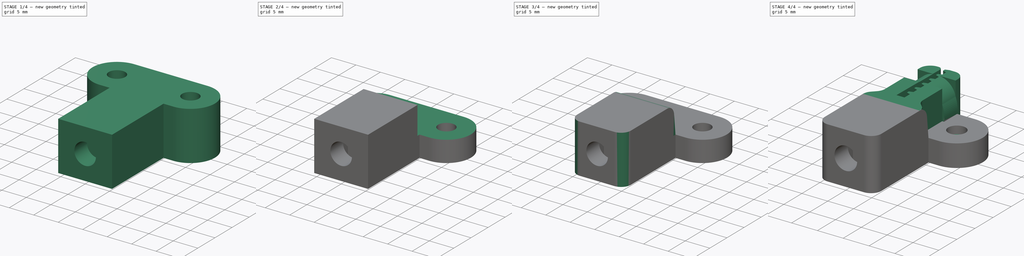
[diagram: build sequence overview — one tinted view per stage of 4, left to right]
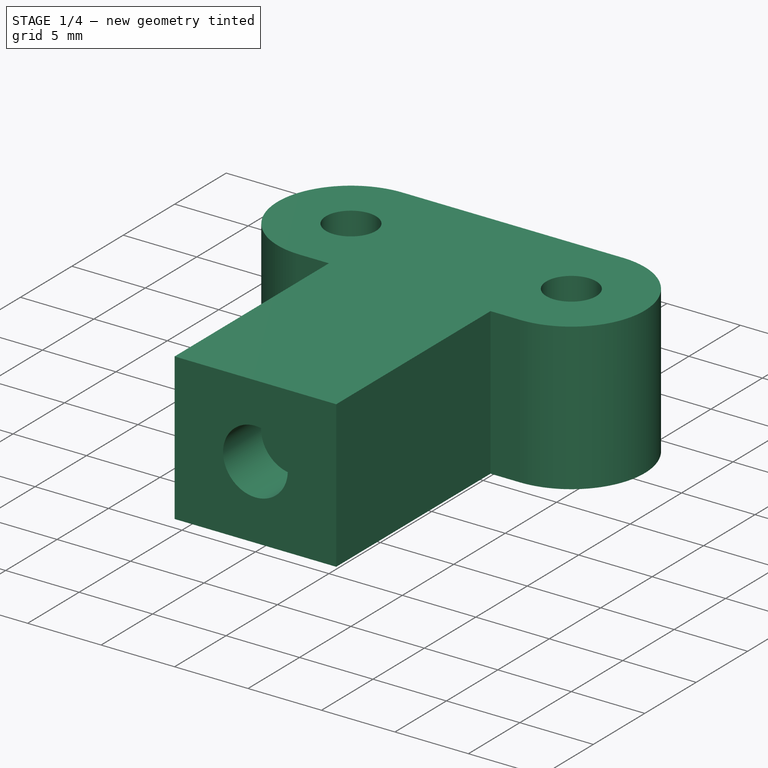
[diagram: stage 1 of 4 — iso view after this stage's code; geometry added in this stage tinted green]
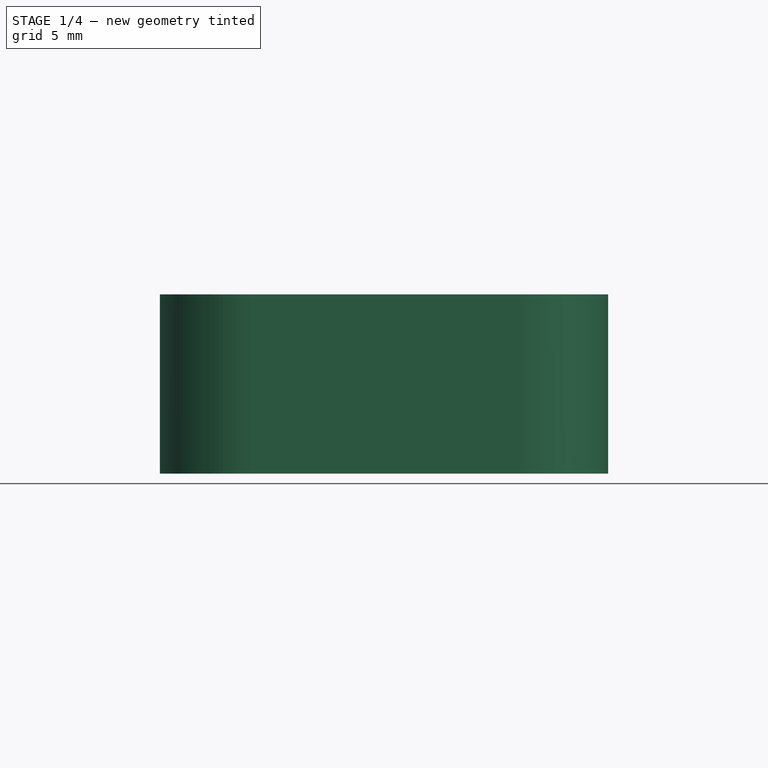
[diagram: stage 1 of 4 — front view after this stage's code; geometry added in this stage tinted green]
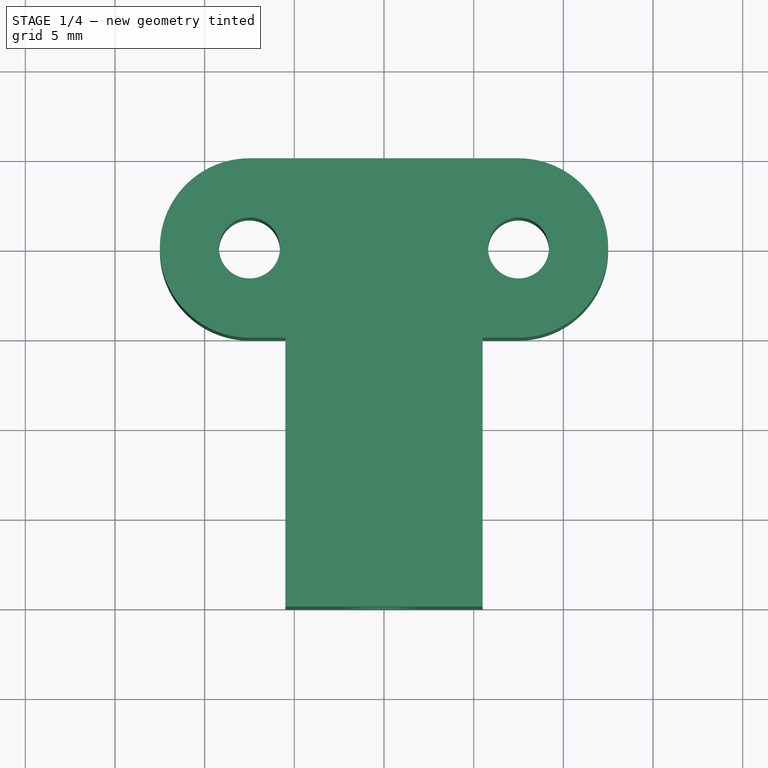
[diagram: stage 1 of 4 — top view after this stage's code; geometry added in this stage tinted green]
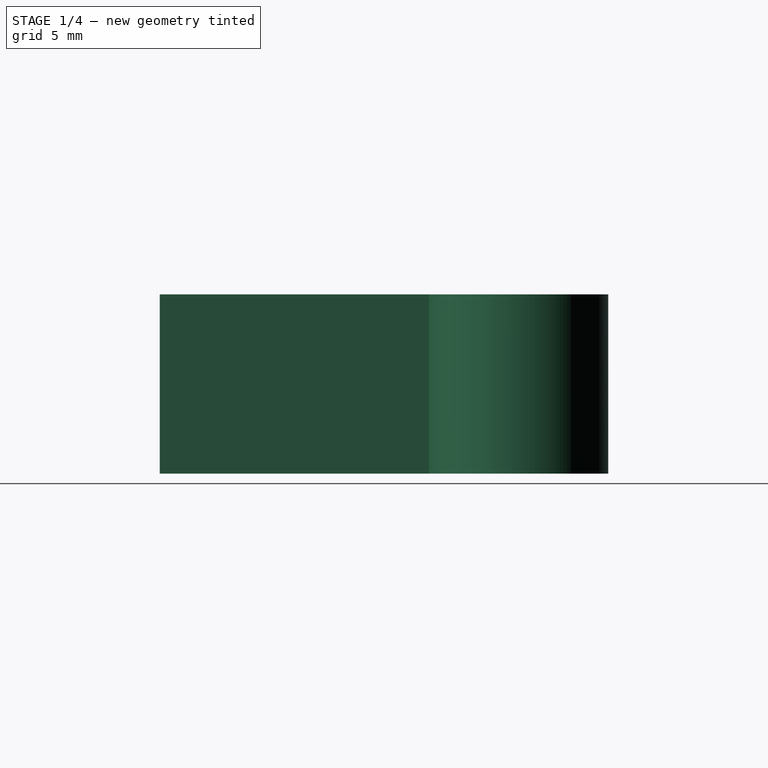
[diagram: stage 1 of 4 — right view after this stage's code; geometry added in this stage tinted green]
FCSTD DOCUMENT  (FreeCAD 0.15R4671 (Git))
Label: Belt Fixture - Bot
License: All rights reserved
LicenseURL: http://de.wikipedia.org/wiki/Alle_Rechte_vorbehalten
objects: Sketcher::SketchObject×7, PartDesign::Pad×4, PartDesign::Pocket×3, PartDesign::Fillet×2, Part::FeaturePython×1, Part::Cut×1, PartDesign::Chamfer×1
note: 26 computed .brp shape members not serialized (recipe doc carries the construction recipe); baked Part::Feature solids carry a one-line shape summary decoded from their .brp

FEATURE [Sketcher::SketchObject] Sketch
  sketch-geometry (11):
    g0: ArcOfCircle CenterX=-7.5 CenterY=0 CenterZ=0 NormalX=0 NormalY=0 NormalZ=1 Radius=5 StartAngle=1.5708 EndAngle=4.71239
    g1: ArcOfCircle CenterX=7.5 CenterY=0 CenterZ=0 NormalX=0 NormalY=0 NormalZ=1 Radius=5 StartAngle=4.71239 EndAngle=7.85398
    g2: LineSegment [constr] StartX=-7.5 StartY=-5 StartZ=0 EndX=7.5 EndY=-5 EndZ=0
    g3: LineSegment StartX=-7.5 StartY=5 StartZ=0 EndX=7.5 EndY=5 EndZ=0
    g4: Circle CenterX=-7.5 CenterY=0 CenterZ=0 NormalX=0 NormalY=0 NormalZ=1 Radius=1.7
    g5: Circle CenterX=7.5 CenterY=0 CenterZ=0 NormalX=0 NormalY=0 NormalZ=1 Radius=1.7
    g6: LineSegment StartX=-7.5 StartY=-5 StartZ=0 EndX=-5.5 EndY=-5 EndZ=0
    g7: LineSegment StartX=-5.5 StartY=-5 StartZ=0 EndX=-5.5 EndY=-20 EndZ=0
    g8: LineSegment StartX=-5.5 StartY=-20 StartZ=0 EndX=5.5 EndY=-20 EndZ=0
    g9: LineSegment StartX=5.5 StartY=-20 StartZ=0 EndX=5.5 EndY=-5 EndZ=0
    g10: LineSegment StartX=5.5 StartY=-5 StartZ=0 EndX=7.5 EndY=-5 EndZ=0
  constraints (31):
    c: Tangent(g0,g3) = 1.5708
    c: Tangent(g3,g1) = 1.5708
    c: Horizontal(g2)
    c: Equal(g0,g1)
    c: Symmetric(g0,g1,g-2)
    c: DistanceX(g0,g1) = 15
    c: Coincident(g4,g0)
    c: DistanceY(g1,g1) = -10
    c: Coincident(g5,g1)
    c: Radius(g5) = 1.7
    c: Equal(g5,g4)
    c: Coincident(g1,g2)
    c: Coincident(g0,g2)
    c: PointOnObject(g0,g-1)
    c: Equal(g2,g3)
    c: Symmetric(g0,g1,g-2)
    c: Horizontal(g6)
    c: Coincident(g6,g7)
    c: Vertical(g7)
    c: Coincident(g7,g8)
    c: Horizontal(g8)
    c: Coincident(g8,g9)
    c: Vertical(g9)
    c: Coincident(g9,g10)
    c: Horizontal(g10)
    c: Symmetric(g7,g8,g-2)
    c: PointOnObject(g6,g10)
    c: Coincident(g1,g10)
    c: Coincident(g6,g0)
    c: DistanceX(g8) = 11
    c: DistanceY(g9) = 15
FEATURE [PartDesign::Pad] Pad
  Length = 10
  Length2 = 100
  Sketch = -> Sketch
  Type = 0
FEATURE [Sketcher::SketchObject] Sketch001
  Placement = pos=(0,-13,0) rot=(-1,0,0;4.71239rad)
  sketch-geometry (10):
    g0: LineSegment [constr] StartX=0 StartY=0.929681 StartZ=0 EndX=3.525 EndY=2.96484 EndZ=0
    g1: LineSegment StartX=3.525 StartY=2.96484 StartZ=0 EndX=3.525 EndY=7.03516 EndZ=0
    g2: LineSegment StartX=3.525 StartY=7.03516 StartZ=0 EndX=0 EndY=9.07032 EndZ=0
    g3: LineSegment StartX=0 StartY=9.07032 StartZ=0 EndX=-3.525 EndY=7.03516 EndZ=0
    g4: LineSegment StartX=-3.525 StartY=7.03516 StartZ=0 EndX=-3.525 EndY=2.96484 EndZ=0
    g5: LineSegment [constr] StartX=-3.525 StartY=2.96484 StartZ=0 EndX=0 EndY=0.929681 EndZ=0
    g6: Circle [constr] CenterX=0 CenterY=5 CenterZ=0 NormalX=0 NormalY=0 NormalZ=1 Radius=4.07032
    g7: LineSegment StartX=-3.525 StartY=2.96484 StartZ=0 EndX=-3.525 EndY=0 EndZ=0
    g8: LineSegment StartX=-3.525 StartY=0 StartZ=0 EndX=3.525 EndY=0 EndZ=0
    g9: LineSegment StartX=3.525 StartY=0 StartZ=0 EndX=3.525 EndY=2.96484 EndZ=0
  constraints (25):
    c: Coincident(g0,g1)
    c: Coincident(g1,g2)
    c: Coincident(g2,g3)
    c: Coincident(g3,g4)
    c: Coincident(g4,g5)
    c: Coincident(g5,g0)
    c: Equal(g0, g1-g5) x5
    c: PointOnObject(g0,g6)
    c: PointOnObject(g1,g6)
    c: PointOnObject(g2,g6)
    c: PointOnObject(g3,g6)
    c: PointOnObject(g4,g6)
    c: PointOnObject(g5,g6)
    c: Vertical(g4)
    c: DistanceY(g-1,g6) = 5
    c: PointOnObject(g6,g-2)
    c: Distance(g0,g4) = 7.05
    c: Vertical(g7)
    c: Coincident(g7,g8)
    c: Horizontal(g8)
    c: Coincident(g8,g9)
    c: Vertical(g9)
    c: Coincident(g0,g9)
    c: Coincident(g4,g7)
    c: PointOnObject(g8,g-1)
FEATURE [Sketcher::SketchObject] Sketch002
  Placement = pos=(0,-20,0) rot=(1,0,0;1.5708rad)
  Support = -> Pad [Face4]
  sketch-geometry (1):
    g0: Circle CenterX=0 CenterY=5 CenterZ=0 NormalX=0 NormalY=0 NormalZ=1 Radius=2.2
  constraints (3):
    c: PointOnObject(g0,g-2)
    c: Radius(g0) = 2.2
    c: DistanceY(g-1,g0) = 5
FEATURE [PartDesign::Pocket] Pocket
  Length = 14
  Sketch = -> Sketch002
  Type = 0
FEATURE [PartDesign::Pad] Pad001
  Length = 3.3
  Length2 = 100
  Placement = pos=(0,-13,0) rot=(-1,0,0;4.71239rad)
  Sketch = -> Sketch001
  Type = 0
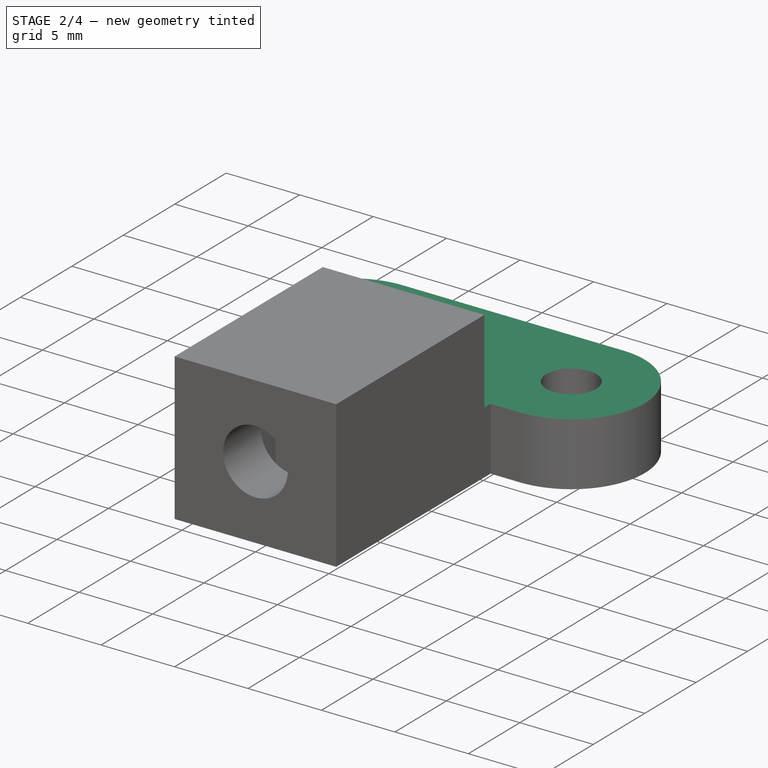
[diagram: stage 2 of 4 — iso view after this stage's code; geometry added in this stage tinted green]
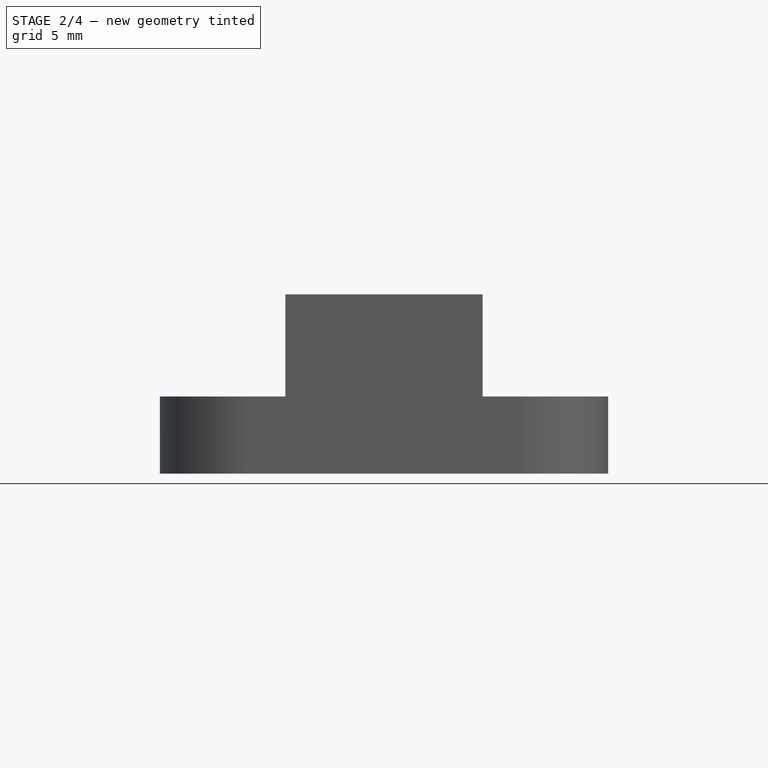
[diagram: stage 2 of 4 — front view after this stage's code; geometry added in this stage tinted green]
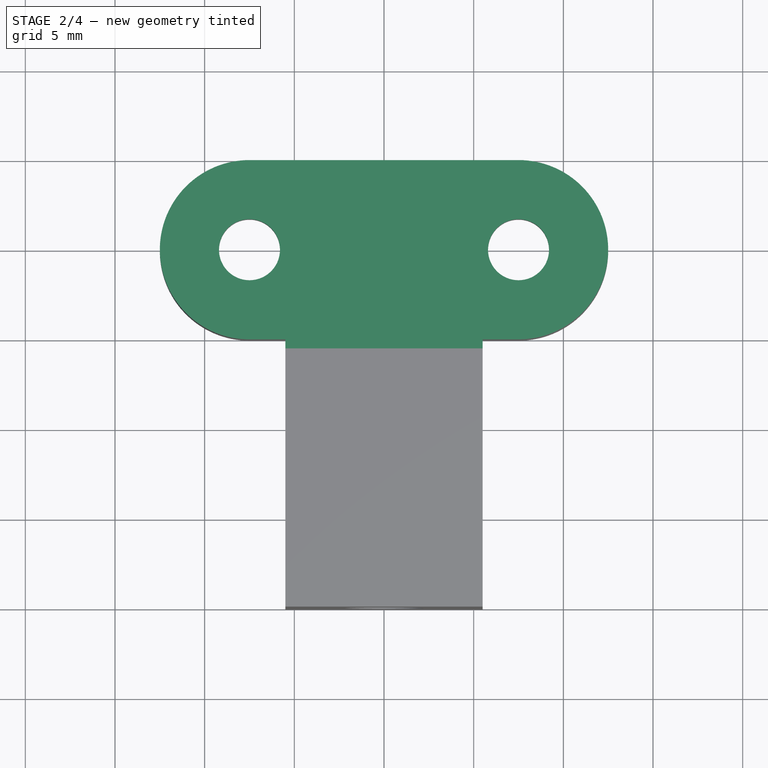
[diagram: stage 2 of 4 — top view after this stage's code; geometry added in this stage tinted green]
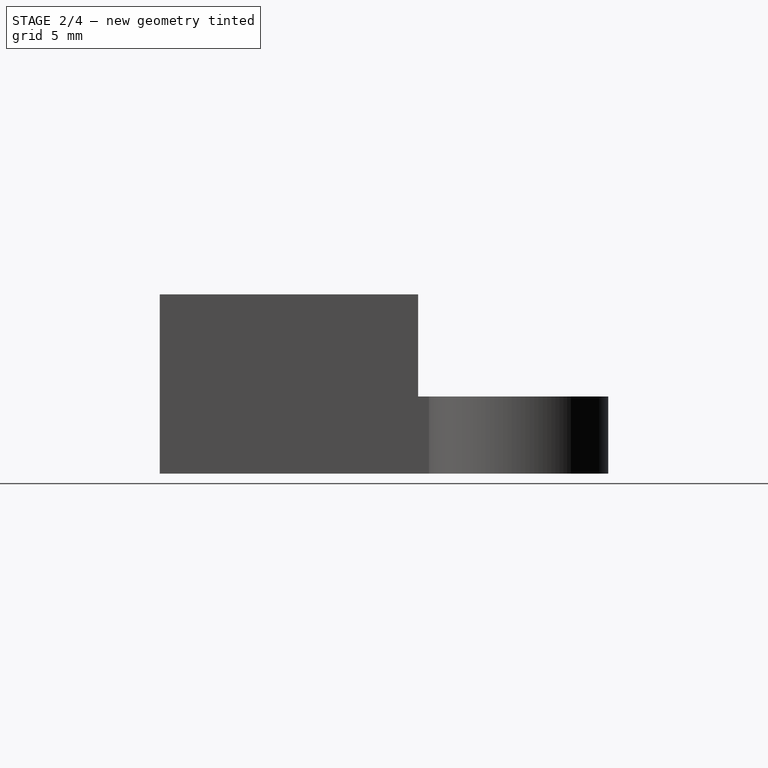
[diagram: stage 2 of 4 — right view after this stage's code; geometry added in this stage tinted green]
FEATURE [Part::Cut] Cut
  Base = -> Pocket
  Tool = -> Pad001
FEATURE [Sketcher::SketchObject] Sketch003
  ExternalGeometry = -> [Cut]
  Placement = pos=(0,0,0) rot=(1,0,0;3.14159rad)
  Support = -> Cut [Face4]
  sketch-geometry (14):
    g0: LineSegment StartX=-4.29571 StartY=0 StartZ=0 EndX=-5.89785 EndY=2.775 EndZ=0
    g1: LineSegment StartX=-5.89785 StartY=2.775 StartZ=0 EndX=-9.10215 EndY=2.775 EndZ=0
    g2: LineSegment StartX=-9.10215 StartY=2.775 StartZ=0 EndX=-10.7043 EndY=0 EndZ=0
    g3: LineSegment StartX=-10.7043 StartY=0 StartZ=0 EndX=-9.10215 EndY=-2.775 EndZ=0
    g4: LineSegment StartX=-9.10215 StartY=-2.775 StartZ=0 EndX=-5.89785 EndY=-2.775 EndZ=0
    g5: LineSegment StartX=-5.89785 StartY=-2.775 StartZ=0 EndX=-4.29571 EndY=0 EndZ=0
    g6: Circle [constr] CenterX=-7.5 CenterY=0 CenterZ=0 NormalX=0 NormalY=0 NormalZ=1 Radius=3.20429
    g7: LineSegment StartX=10.7043 StartY=0 StartZ=0 EndX=9.10215 EndY=2.775 EndZ=0
    g8: LineSegment StartX=9.10215 StartY=2.775 StartZ=0 EndX=5.89785 EndY=2.775 EndZ=0
    g9: LineSegment StartX=5.89785 StartY=2.775 StartZ=0 EndX=4.29571 EndY=0 EndZ=0
    g10: LineSegment StartX=4.29571 StartY=0 StartZ=0 EndX=5.89785 EndY=-2.775 EndZ=0
    g11: LineSegment StartX=5.89785 StartY=-2.775 StartZ=0 EndX=9.10215 EndY=-2.775 EndZ=0
    g12: LineSegment StartX=9.10215 StartY=-2.775 StartZ=0 EndX=10.7043 EndY=0 EndZ=0
    g13: Circle [constr] CenterX=7.5 CenterY=0 CenterZ=0 NormalX=0 NormalY=0 NormalZ=1 Radius=3.20429
  constraints (32):
    c: Coincident(g0,g1)
    c: Coincident(g1,g2)
    c: Coincident(g2,g3)
    c: Coincident(g3,g4)
    c: Coincident(g4,g5)
    c: Coincident(g5,g0)
    c: Equal(g0, g1-g5) x5
    c: PointOnObject(g0,g6)
    c: PointOnObject(g1,g6)
    c: PointOnObject(g2,g6)
    c: PointOnObject(g3,g6)
    c: PointOnObject(g4,g6)
    c: PointOnObject(g5,g6)
    c: Horizontal(g4)
    c: Coincident(g7,g8)
    c: Coincident(g8,g9)
    c: Coincident(g9,g10)
    c: Coincident(g10,g11)
    c: Coincident(g11,g12)
    c: Coincident(g12,g7)
    c: Equal(g7, g8-g12) x5
    c: PointOnObject(g7,g13)
    c: PointOnObject(g8,g13)
    c: PointOnObject(g9,g13)
    c: PointOnObject(g10,g13)
    c: PointOnObject(g11,g13)
    c: PointOnObject(g12,g13)
    c: Horizontal(g11)
    c: Symmetric(g6,g13,g-2)
    c: Equal(g6,g13)
    c: Distance(g0,g4) = 5.55
    c: Coincident(g-3,g6)
FEATURE [PartDesign::Pocket] Pocket001
  Length = 2.5
  Sketch = -> Sketch003
  Type = 0
FEATURE [Sketcher::SketchObject] Sketch004
  ExternalGeometry = -> [Pocket001]
  Placement = pos=(0,0,10) rot=(0,0,1;0rad)
  Support = -> Pocket001 [Face5]
  sketch-geometry (9):
    g0: ArcOfCircle CenterX=-7.5 CenterY=0 CenterZ=0 NormalX=0 NormalY=0 NormalZ=1 Radius=5 StartAngle=1.5708 EndAngle=4.71239
    g1: ArcOfCircle CenterX=7.5 CenterY=0 CenterZ=0 NormalX=0 NormalY=0 NormalZ=1 Radius=5 StartAngle=4.71239 EndAngle=7.85398
    g2: LineSegment [constr] StartX=-7.5 StartY=-5 StartZ=0 EndX=7.5 EndY=-5 EndZ=0
    g3: LineSegment StartX=-7.5 StartY=5 StartZ=0 EndX=7.5 EndY=5 EndZ=0
    g4: LineSegment StartX=-7.5 StartY=-5 StartZ=0 EndX=-5.5 EndY=-5 EndZ=0
    g5: LineSegment StartX=-5.5 StartY=-5 StartZ=0 EndX=-5.5 EndY=-5.6 EndZ=0
    g6: LineSegment StartX=-5.5 StartY=-5.6 StartZ=0 EndX=5.5 EndY=-5.6 EndZ=0
    g7: LineSegment StartX=5.5 StartY=-5.6 StartZ=0 EndX=5.5 EndY=-5 EndZ=0
    g8: LineSegment StartX=5.5 StartY=-5 StartZ=0 EndX=7.5 EndY=-5 EndZ=0
  constraints (22):
    c: Tangent(g0,g3) = 1.5708
    c: Tangent(g0,g2) = -1.5708
    c: Tangent(g2,g1) = -1.5708
    c: Tangent(g3,g1) = 1.5708
    c: Horizontal(g2)
    c: Symmetric(g0,g1,g-2)
    c: Coincident(g1,g-3)
    c: Coincident(g-4,g1)
    c: Horizontal(g4)
    c: Coincident(g4,g5)
    c: Vertical(g5)
    c: Coincident(g5,g6)
    c: Horizontal(g6)
    c: Coincident(g6,g7)
    c: Vertical(g7)
    c: Coincident(g7,g8)
    c: Horizontal(g8)
    c: Coincident(g1,g8)
    c: Coincident(g0,g4)
    c: Symmetric(g5,g6,g-2)
    c: PointOnObject(g5,g-5)
    c: DistanceY(g7) = 0.6
FEATURE [PartDesign::Pocket] Pocket002
  Length = 5.7
  Sketch = -> Sketch004
  Type = 0
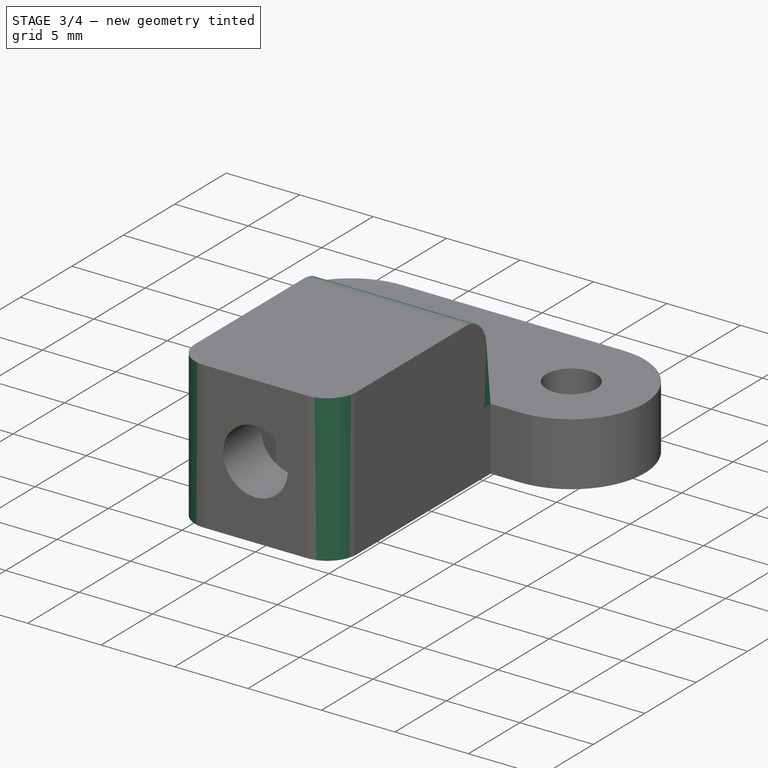
[diagram: stage 3 of 4 — iso view after this stage's code; geometry added in this stage tinted green]
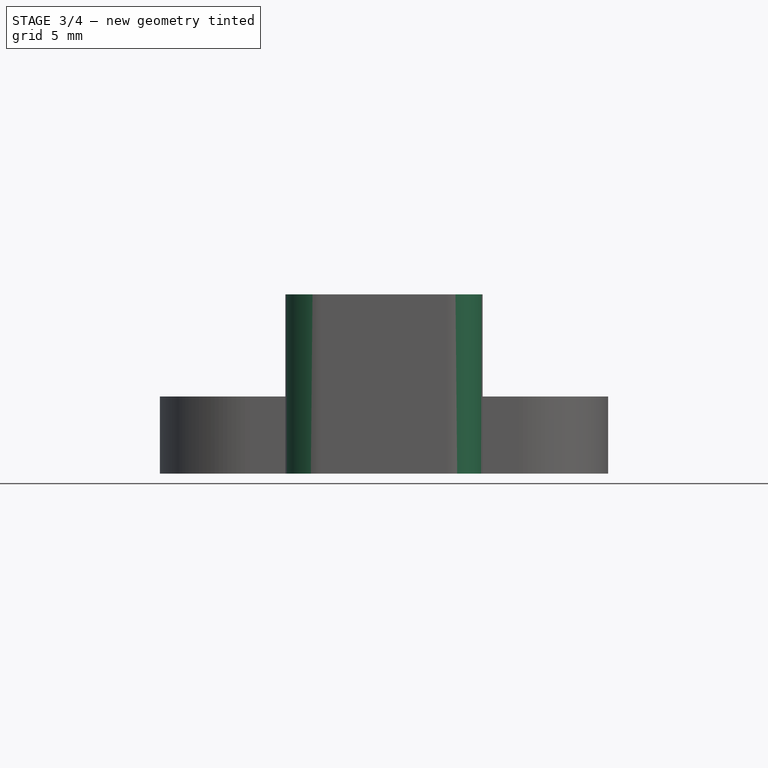
[diagram: stage 3 of 4 — front view after this stage's code; geometry added in this stage tinted green]
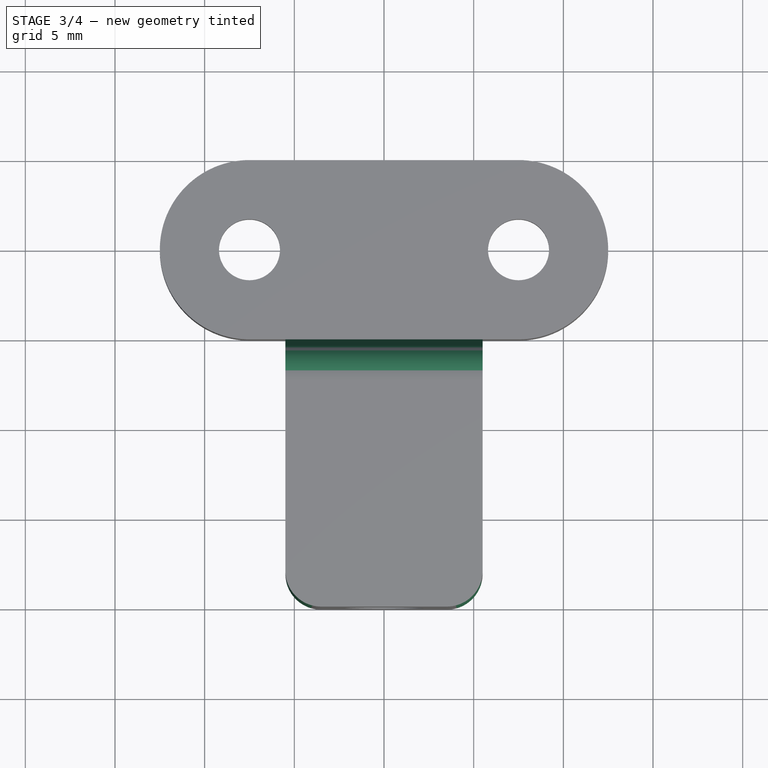
[diagram: stage 3 of 4 — top view after this stage's code; geometry added in this stage tinted green]
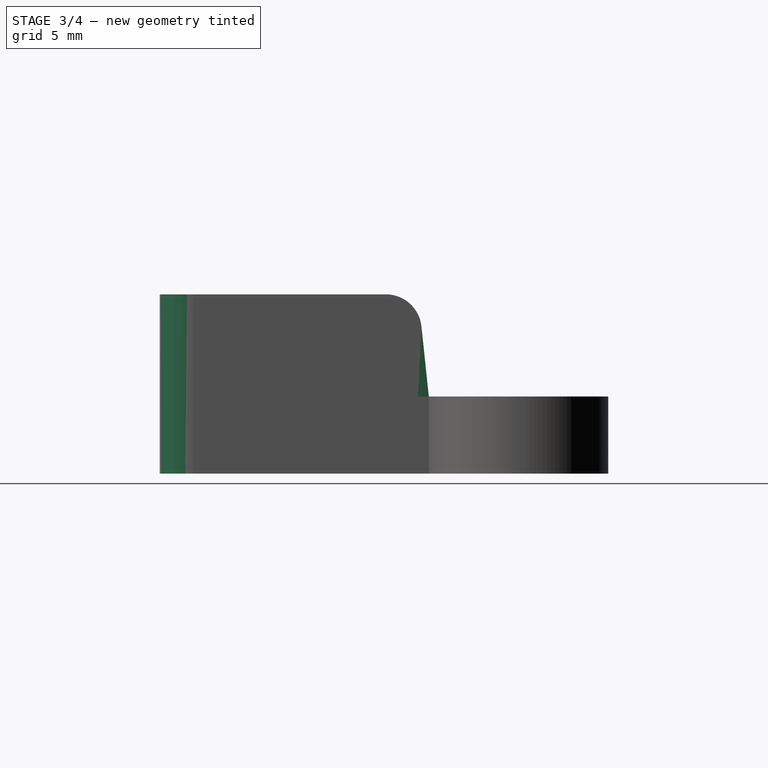
[diagram: stage 3 of 4 — right view after this stage's code; geometry added in this stage tinted green]
FEATURE [Sketcher::SketchObject] Sketch005
  ExternalGeometry = -> [Pocket002]
  Placement = pos=(-5.5,0,0) rot=(0.57735,-0.57735,-0.57735;2.0944rad)
  Support = -> Pocket002 [Face7]
  sketch-geometry (3):
    g0: LineSegment StartX=5 StartY=4.3 StartZ=0 EndX=5.6 EndY=10 EndZ=0
    g1: LineSegment StartX=5.6 StartY=10 StartZ=0 EndX=5.6 EndY=4.3 EndZ=0
    g2: LineSegment StartX=5.6 StartY=4.3 StartZ=0 EndX=5 EndY=4.3 EndZ=0
  constraints (6):
    c: Coincident(g0,g1)
    c: Coincident(g1,g-4)
    c: Coincident(g1,g2)
    c: Coincident(g2,g0)
    c: Coincident(g-4,g0)
    c: Coincident(g0,g-3)
FEATURE [PartDesign::Pad] Pad002
  Length = 11
  Length2 = 100
  Reversed = true
  Sketch = -> Sketch005
  Type = 0
FEATURE [PartDesign::Fillet] Fillet
  Base = -> Pad002 [Edge38,Edge44]
  Radius = 2
FEATURE [PartDesign::Fillet] Fillet001
  Base = -> Fillet [Edge92]
  Radius = 2
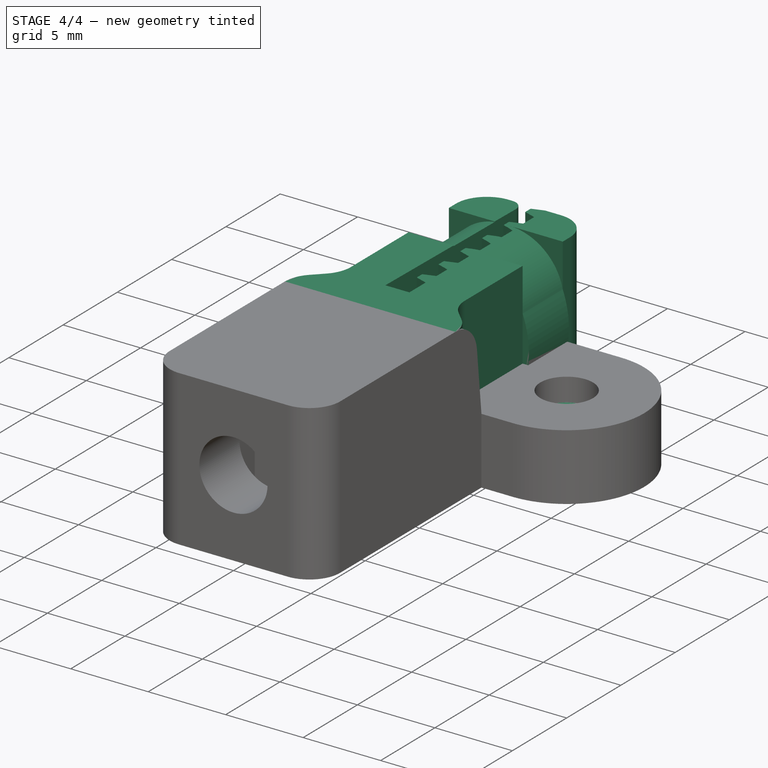
[diagram: stage 4 of 4 — iso view after this stage's code; geometry added in this stage tinted green]
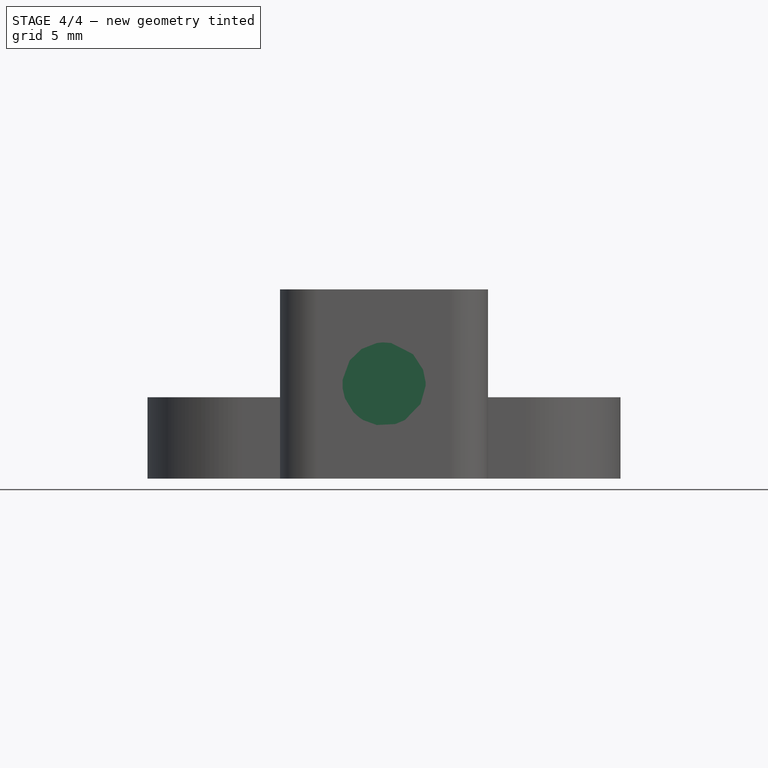
[diagram: stage 4 of 4 — front view after this stage's code; geometry added in this stage tinted green]
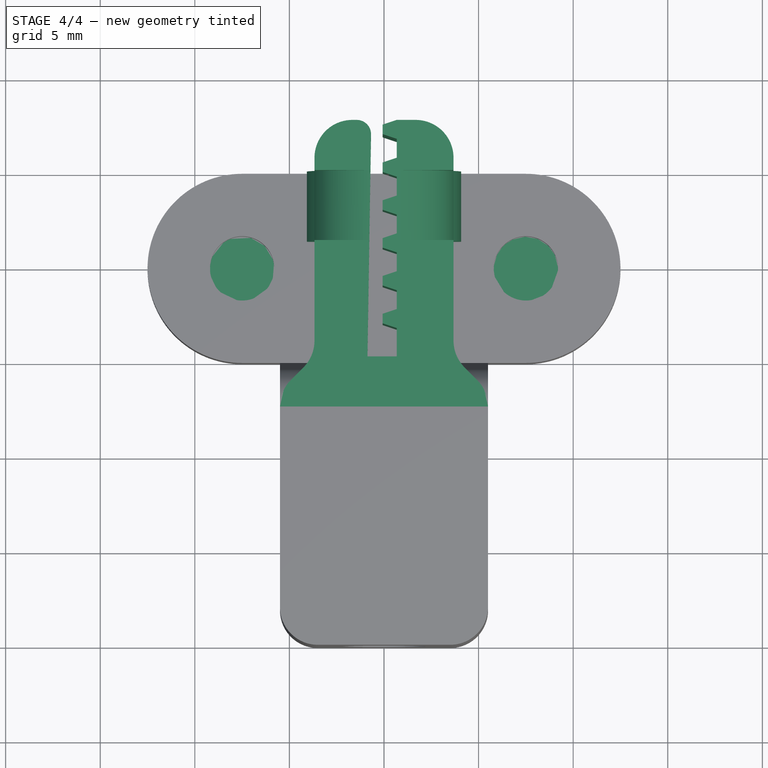
[diagram: stage 4 of 4 — top view after this stage's code; geometry added in this stage tinted green]
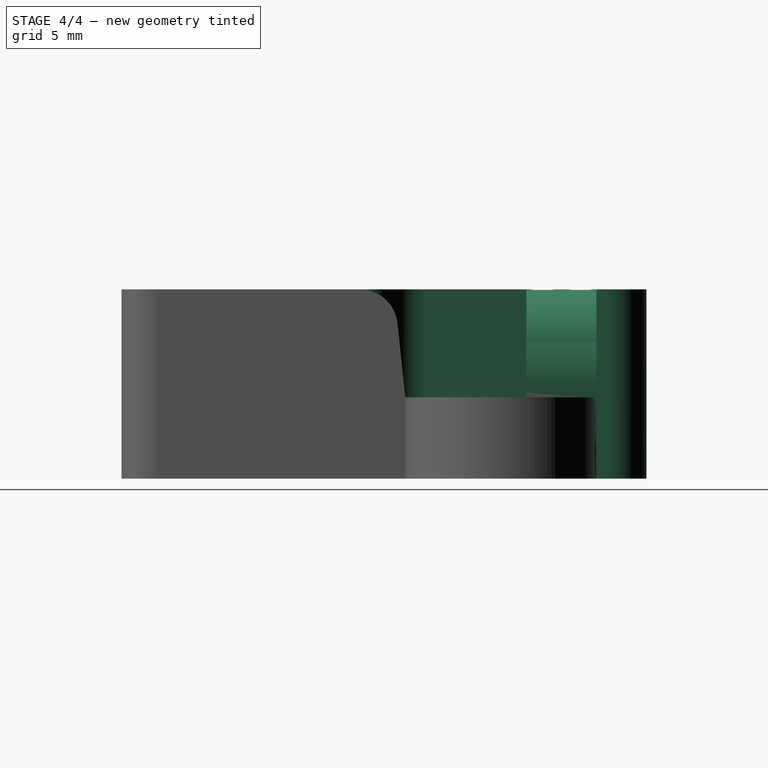
[diagram: stage 4 of 4 — right view after this stage's code; geometry added in this stage tinted green]
FEATURE [Part::FeaturePython] Belt_Tensioner_v2_01  # a2plus imported part (geometry in sourceFile) (typed FeaturePython)
  Placement = pos=(0,-6,0) rot=(0,0,1;1.5708rad)
  fixedPosition = true
  sourceFile = <path> Tensioner v2.FCStd
  timeLastImport = 1.45453e+09
  updateColors = true
FEATURE [Sketcher::SketchObject] Sketch006
  Placement = pos=(0,0,2.5) rot=(1,0,0;3.14159rad)
  Support = -> Fillet001 [Face36]
  sketch-geometry (2):
    g0: Circle CenterX=-7.5 CenterY=3e-12 CenterZ=0 NormalX=0 NormalY=0 NormalZ=1 Radius=1.75
    g1: Circle CenterX=7.5 CenterY=3e-12 CenterZ=0 NormalX=0 NormalY=0 NormalZ=1 Radius=1.75
  constraints (3):
    c: Symmetric(g0,g1,g-2)
    c: Equal(g0,g1)
    c: Radius(g0) = 1.75
FEATURE [PartDesign::Pad] Pad003
  Length = 0.3
  Length2 = 100
  Reversed = true
  Sketch = -> Sketch006
  Type = 0
FEATURE [PartDesign::Chamfer] Chamfer
  Base = -> Pad003 [Edge39,Edge34,Edge35,Edge36,Edge37,Edge38,Edge31,Edge32,Edge33,Edge28,Edge29,Edge30,Edge41,Edge40,Edge43,Edge42]
  Size = 0.5
note: 1 file-system path scrubbed to <path> (originals preserved in the JSON sidecar)
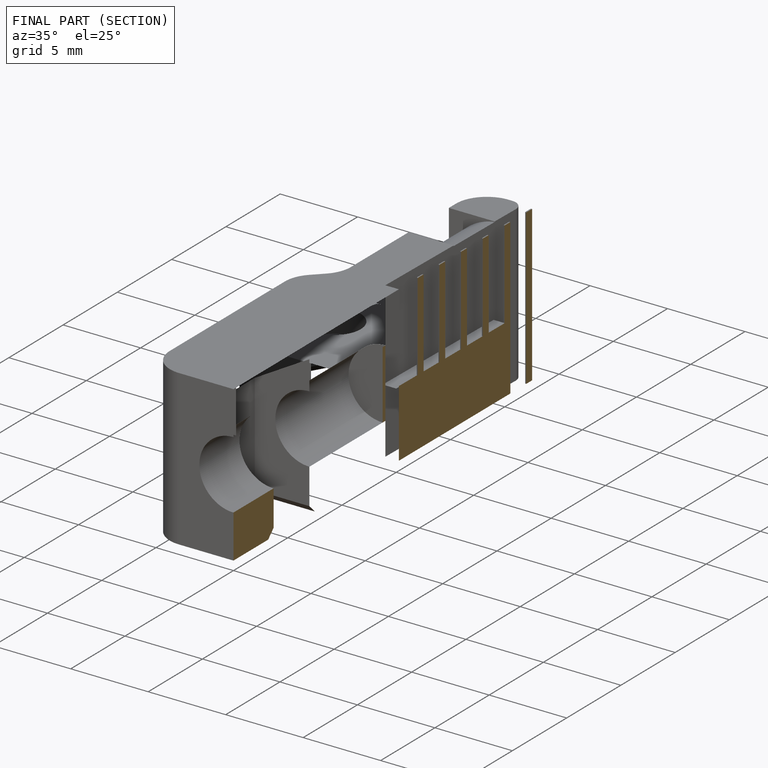
[diagram: finished part — half-section view (interior)]
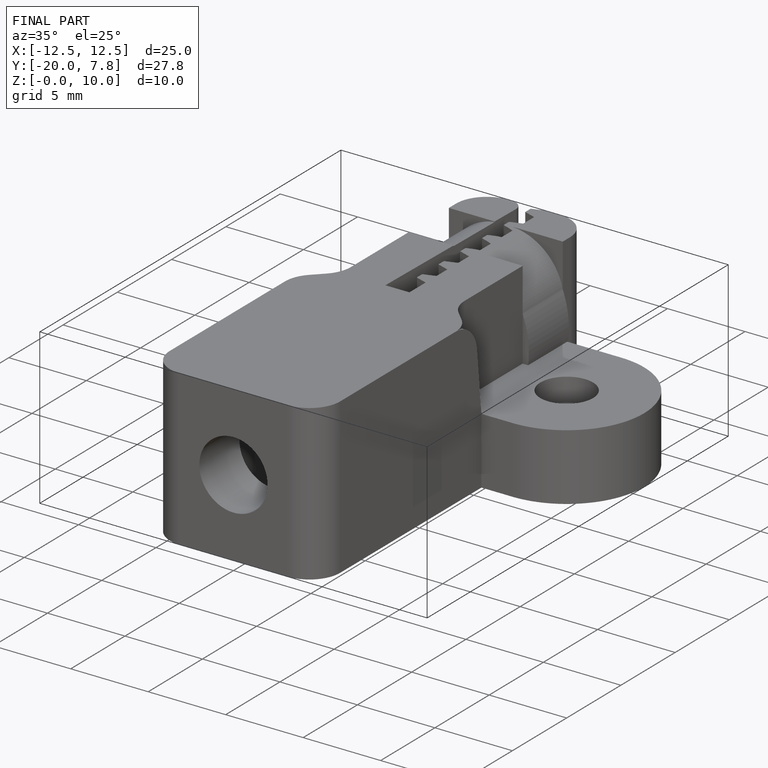
[diagram: finished part — iso view with bounding-box wireframe]
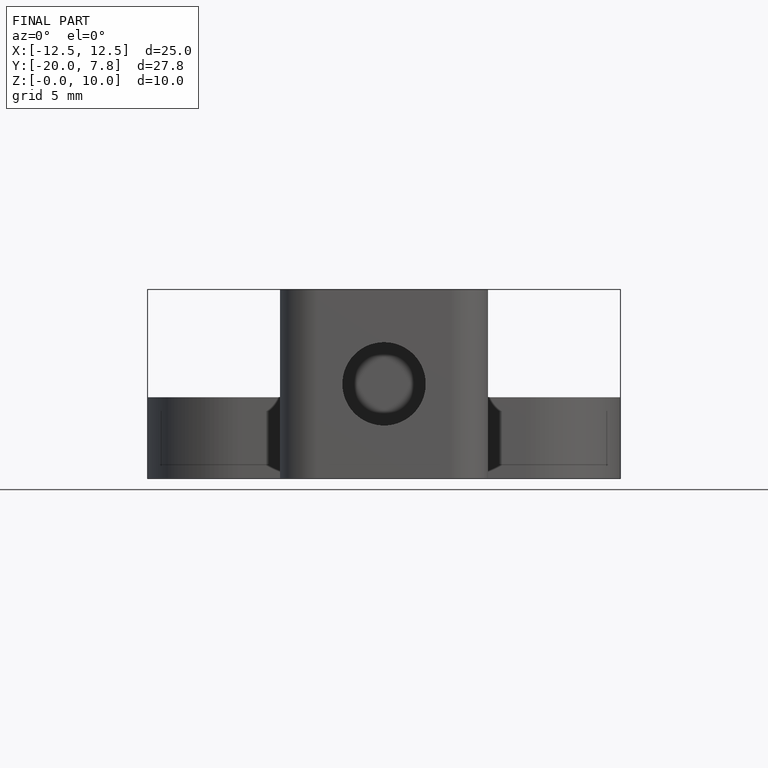
[diagram: finished part — front view with bounding-box wireframe]
